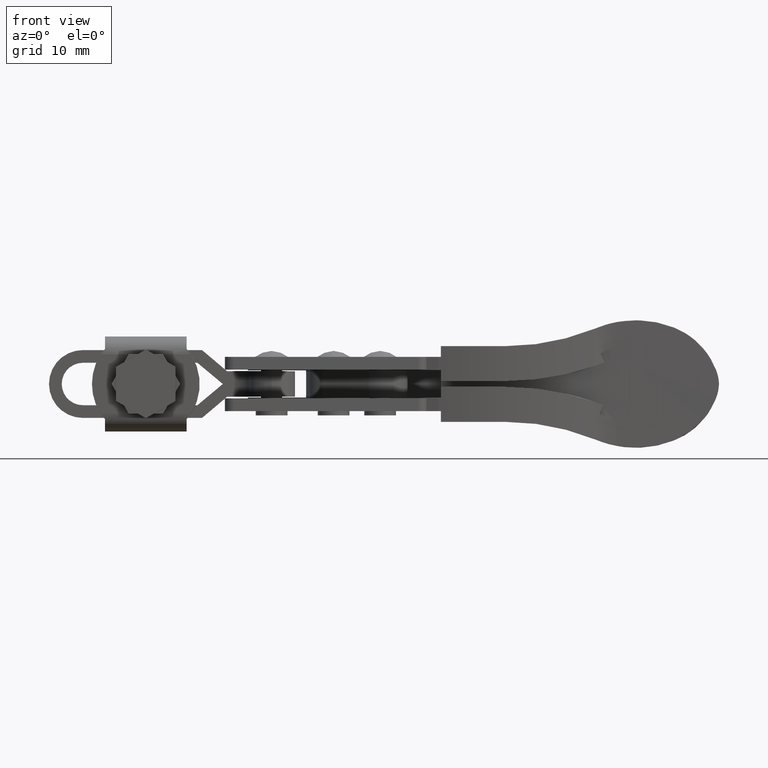
[diagram: clean part render]
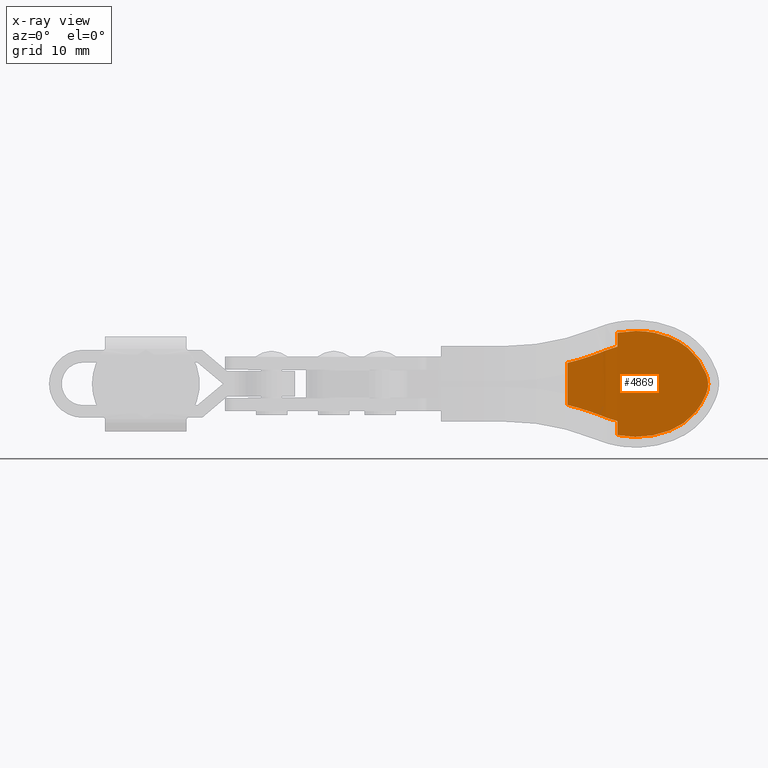
[diagram: x-ray — body ghosted, one internal face saturated and labeled with its STEP entity id]
A machine part, front view, then the same camera in x-ray: the body is ghosted and one INTERNAL B-rep face — a face not visible from any outside direction — is saturated and labeled: STEP entity #4869.
In plain terms, the highlighted planar face has unit normal (-0.0016, -1, -0).
Its self-contained STEP definition (entity closure, byte-faithful):
#28 = CARTESIAN_POINT ( 'NONE',  ( 45.79098327972375400, 17.88650905274218400, 4.241310873853462800 ) ) ;
#110 = EDGE_CURVE ( 'NONE', #5637, #6871, #838, .T. ) ;
#150 = VECTOR ( 'NONE', #814, 1000.000000000000000 ) ;
#318 = CARTESIAN_POINT ( 'NONE',  ( 48.44543944868318200, 17.88235158816831200, 6.249999999999964500 ) ) ;
#377 = CARTESIAN_POINT ( 'NONE',  ( 52.48429700440505700, 17.87596554056541700, 5.481695308335674500 ) ) ;
#436 = VERTEX_POINT ( 'NONE', #6286 ) ;
#437 = CARTESIAN_POINT ( 'NONE',  ( 46.98360184988707300, 17.88462984043733100, 6.102820257366212300 ) ) ;
#491 = CARTESIAN_POINT ( 'NONE',  ( 48.44543944868318200, 17.88235158816831200, 6.249999999999964500 ) ) ;
#504 = CARTESIAN_POINT ( 'NONE',  ( 46.25268310638163200, 17.88580355685209600, 6.029230386049039000 ) ) ;
#619 = VERTEX_POINT ( 'NONE', #6979 ) ;
#726 = VERTEX_POINT ( 'NONE', #2441 ) ;
#775 = CARTESIAN_POINT ( 'NONE',  ( 44.86750784398439900, 17.83976922257006600, 3.942466847917069500 ) ) ;
#814 = DIRECTION ( 'NONE',  ( -2.041693517150469500E-019, 9.875386707149103800E-023, 1.000000000000000000 ) ) ;
#820 = CARTESIAN_POINT ( 'NONE',  ( 46.25268317455845600, 17.88584408937888500, -6.029230386594629300 ) ) ;
#838 = B_SPLINE_CURVE_WITH_KNOTS ( 'NONE', 3,
 ( #318, #1660, #437, #504 ),
 .UNSPECIFIED., .F., .F.,
 ( 4, 4 ),
 ( 0.0000000000000000000, 1.000000000000000000 ),
 .UNSPECIFIED. ) ;
#857 = DIRECTION ( 'NONE',  ( -0.001575700747062900700, -0.9999987585828072900, -2.229560555275515400E-022 ) ) ;
#1080 = CARTESIAN_POINT ( 'NONE',  ( 56.87431524658510500, 17.86904501660190500, 0.8275352792890107200 ) ) ;
#1178 = B_SPLINE_CURVE_WITH_KNOTS ( 'NONE', 3,
 ( #2174, #1419, #8324, #3740 ),
 .UNSPECIFIED., .F., .F.,
 ( 4, 4 ),
 ( 0.0000000000000000000, 1.000000000000000000 ),
 .UNSPECIFIED. ) ;
#1228 = CIRCLE ( 'NONE', #5844, 31.08454709074505500 ) ;
#1255 = CARTESIAN_POINT ( 'NONE',  ( 56.87431520584860300, 17.86904501666608900, -0.8275354673649292200 ) ) ;
#1417 = FACE_OUTER_BOUND ( 'NONE', #7432, .T. ) ;
#1419 = CARTESIAN_POINT ( 'NONE',  ( 45.32928351146991000, 17.88723655431507000, -4.091888911261723800 ) ) ;
#1592 = CARTESIAN_POINT ( 'NONE',  ( 46.25268307082375700, 17.88578155113326700, 4.651286101840660200 ) ) ;
#1608 = EDGE_CURVE ( 'NONE', #5301, #4837, #8622, .T. ) ;
#1660 = CARTESIAN_POINT ( 'NONE',  ( 47.71452062895041700, 17.88347812974136300, 6.176410128683188300 ) ) ;
#1699 = AXIS2_PLACEMENT_3D ( 'NONE', #4699, #857, #8543 ) ;
#1787 = CARTESIAN_POINT ( 'NONE',  ( 44.86750784398448400, 17.83976922257007300, -3.942466847917188900 ) ) ;
#1804 = CARTESIAN_POINT ( 'NONE',  ( 55.95513906113730200, 17.87049336500200200, -3.196986526623715200 ) ) ;
#1872 = EDGE_CURVE ( 'NONE', #3166, #5810, #8536, .T. ) ;
#1909 = CARTESIAN_POINT ( 'NONE',  ( 33.02944407427631300, 17.90661744456475200, 32.68454709073220200 ) ) ;
#1915 = CARTESIAN_POINT ( 'NONE',  ( 40.37391496331066800, 17.89504474193171600, 4.886345488035412500E-014 ) ) ;
#2062 = CARTESIAN_POINT ( 'NONE',  ( 44.86750784398448400, 17.83976922257007300, -3.942466847917188900 ) ) ;
#2144 = CARTESIAN_POINT ( 'NONE',  ( 46.25268317455845600, 17.88584408937888500, -6.029230386594629300 ) ) ;
#2174 = CARTESIAN_POINT ( 'NONE',  ( 44.86750784398448400, 17.83976922257007300, -3.942466847917188900 ) ) ;
#2183 = B_SPLINE_CURVE_WITH_KNOTS ( 'NONE', 3,
 ( #4612, #28, #5387, #775 ),
 .UNSPECIFIED., .F., .F.,
 ( 4, 4 ),
 ( 0.0000000000000000000, 1.000000000000000000 ),
 .UNSPECIFIED. ) ;
#2260 = CARTESIAN_POINT ( 'NONE',  ( 46.25268307082375700, 17.88578155113326700, -4.651286176659945100 ) ) ;
#2279 = CARTESIAN_POINT ( 'NONE',  ( 56.72282315603347800, 17.86928372309849100, -1.218051450812564800 ) ) ;
#2301 = ORIENTED_EDGE ( 'NONE', *, *, #3812, .T. ) ;
#2377 = CARTESIAN_POINT ( 'NONE',  ( 52.48429699929834400, 17.87596238022110700, -5.481695308335604400 ) ) ;
#2420 = CARTESIAN_POINT ( 'NONE',  ( 44.86750784398439900, 17.83976922257006600, 3.942466847917069500 ) ) ;
#2441 = CARTESIAN_POINT ( 'NONE',  ( 40.37391346090478100, 17.89504474427887000, -2.480109319563617900 ) ) ;
#2502 = CARTESIAN_POINT ( 'NONE',  ( 52.48429699929834400, 17.87596238022110700, -5.481695308335604400 ) ) ;
#2535 = ORIENTED_EDGE ( 'NONE', *, *, #1872, .T. ) ;
#2584 = CARTESIAN_POINT ( 'NONE',  ( 52.48429699929834400, 17.87596238022110700, -5.481695308335604400 ) ) ;
#2635 =( BOUNDED_CURVE ( )  B_SPLINE_CURVE ( 3, ( #6612, #1255, #7406, #2798 ),
 .UNSPECIFIED., .F., .F. ) 
 B_SPLINE_CURVE_WITH_KNOTS ( ( 4, 4 ),
 ( 5.913128607421209700, 6.225998711241637700 ),
 .UNSPECIFIED. ) 
 CURVE ( )  GEOMETRIC_REPRESENTATION_ITEM ( )  RATIONAL_B_SPLINE_CURVE ( ( 1.000000000000000000, 0.9918593133676305600, 0.9918593133676305600, 1.000000000000000000 ) ) 
 REPRESENTATION_ITEM ( '' )  );
#2676 = DIRECTION ( 'NONE',  ( -0.9999987585828072900, 0.001575700747057735500, 0.0000000000000000000 ) ) ;
#2753 = ORIENTED_EDGE ( 'NONE', *, *, #3458, .T. ) ;
#2798 = CARTESIAN_POINT ( 'NONE',  ( 56.98705663460304300, 17.86886736969204400, -8.494730215188313900E-014 ) ) ;
#2829 = ORIENTED_EDGE ( 'NONE', *, *, #8651, .F. ) ;
#2877 = CARTESIAN_POINT ( 'NONE',  ( 51.18659504783050800, 17.87800717269393800, 5.993195533643512500 ) ) ;
#2928 = LINE ( 'NONE', #1915, #8809 ) ;
#2945 = VERTEX_POINT ( 'NONE', #7091 ) ;
#3030 = CARTESIAN_POINT ( 'NONE',  ( 56.98705663460304300, 17.86886736969204400, -8.494730215188313900E-014 ) ) ;
#3054 = ORIENTED_EDGE ( 'NONE', *, *, #1608, .T. ) ;
#3056 = CARTESIAN_POINT ( 'NONE',  ( 56.96311593644716000, 17.86890509311484000, 0.4181858341423515000 ) ) ;
#3166 = VERTEX_POINT ( 'NONE', #2502 ) ;
#3237 = CARTESIAN_POINT ( 'NONE',  ( 44.50011640285117700, 17.88854307516950100, 3.795205002887558800 ) ) ;
#3364 = CARTESIAN_POINT ( 'NONE',  ( 56.72282315603347800, 17.86928372309849100, -1.218051450812564800 ) ) ;
#3404 = LINE ( 'NONE', #2260, #7000 ) ;
#3451 = ORIENTED_EDGE ( 'NONE', *, *, #7357, .T. ) ;
#3458 = EDGE_CURVE ( 'NONE', #5238, #436, #1178, .T. ) ;
#3565 = VERTEX_POINT ( 'NONE', #4641 ) ;
#3740 = CARTESIAN_POINT ( 'NONE',  ( 46.25268306320832300, 17.88578155114527800, -4.390732838272668000 ) ) ;
#3812 = EDGE_CURVE ( 'NONE', #4837, #7127, #9288, .T. ) ;
#3844 = DIRECTION ( 'NONE',  ( -0.001575700747058199600, -0.9999987585828072900, -5.029833024917146000E-022 ) ) ;
#3912 = CIRCLE ( 'NONE', #7001, 31.08459272739558400 ) ;
#4198 = CARTESIAN_POINT ( 'NONE',  ( 56.72282325979133300, 17.86928372293499800, 1.218051183345772100 ) ) ;
#4268 = CARTESIAN_POINT ( 'NONE',  ( 56.72282325979133300, 17.86928372293499800, 1.218051183345772100 ) ) ;
#4519 = B_SPLINE_CURVE_WITH_KNOTS ( 'NONE', 3,
 ( #8241, #2877, #9803, #5200 ),
 .UNSPECIFIED., .F., .F.,
 ( 4, 4 ),
 ( 0.0000000000000000000, 1.000000000000000000 ),
 .UNSPECIFIED. ) ;
#4612 = CARTESIAN_POINT ( 'NONE',  ( 46.25268306320830200, 17.88578155114527800, 4.390732840097321300 ) ) ;
#4641 = CARTESIAN_POINT ( 'NONE',  ( 40.37432946924720800, 17.89504408879348700, 2.478404440749573100 ) ) ;
#4699 = CARTESIAN_POINT ( 'NONE',  ( 32.88581592023680100, 17.90684375983535400, -6.429256613801655400 ) ) ;
#4837 = VERTEX_POINT ( 'NONE', #7705 ) ;
#4844 = EDGE_CURVE ( 'NONE', #6295, #3166, #8020, .T. ) ;
#4863 = ORIENTED_EDGE ( 'NONE', *, *, #8688, .F. ) ;
#4869 = ADVANCED_FACE ( 'NONE', ( #1417 ), #7020, .T. ) ;
#4870 = B_SPLINE_CURVE_WITH_KNOTS ( 'NONE', 3,
 ( #2420, #5525, #3237, #8610 ),
 .UNSPECIFIED., .F., .F.,
 ( 4, 4 ),
 ( 0.0000000000000000000, 1.000000000000000000 ),
 .UNSPECIFIED. ) ;
#4982 = CARTESIAN_POINT ( 'NONE',  ( 54.45866028947305900, 17.87285137064774400, 4.702333559546856300 ) ) ;
#5200 = CARTESIAN_POINT ( 'NONE',  ( 48.44543944868318200, 17.88235158816831200, 6.249999999999964500 ) ) ;
#5208 = CARTESIAN_POINT ( 'NONE',  ( 46.25268310638163200, 17.88580355685209600, 6.029230386049039000 ) ) ;
#5238 = VERTEX_POINT ( 'NONE', #2062 ) ;
#5301 = VERTEX_POINT ( 'NONE', #9129 ) ;
#5387 = CARTESIAN_POINT ( 'NONE',  ( 45.32928351147008800, 17.88723655431507000, 4.091888911260817900 ) ) ;
#5413 = ORIENTED_EDGE ( 'NONE', *, *, #9174, .T. ) ;
#5525 = CARTESIAN_POINT ( 'NONE',  ( 44.68385010415659100, 17.88825356547968700, 3.868835900214546700 ) ) ;
#5637 = VERTEX_POINT ( 'NONE', #491 ) ;
#5810 = VERTEX_POINT ( 'NONE', #2279 ) ;
#5844 = AXIS2_PLACEMENT_3D ( 'NONE', #1909, #7281, #2676 ) ;
#5937 = ORIENTED_EDGE ( 'NONE', *, *, #7513, .F. ) ;
#6102 = VERTEX_POINT ( 'NONE', #9520 ) ;
#6121 = ORIENTED_EDGE ( 'NONE', *, *, #8285, .T. ) ;
#6286 = CARTESIAN_POINT ( 'NONE',  ( 46.25268306320832300, 17.88578155114527800, -4.390732838272668000 ) ) ;
#6295 = VERTEX_POINT ( 'NONE', #2144 ) ;
#6310 = VERTEX_POINT ( 'NONE', #9847 ) ;
#6350 = CARTESIAN_POINT ( 'NONE',  ( 44.19539548682648400, 17.88902322474060500, -3.674715870943699300 ) ) ;
#6379 = CARTESIAN_POINT ( 'NONE',  ( 44.64352106254607800, 17.88831711205957100, -3.853216414295353300 ) ) ;
#6441 = CARTESIAN_POINT ( 'NONE',  ( 52.48429700440505700, 17.87596554056541700, 5.481695308335674500 ) ) ;
#6612 = CARTESIAN_POINT ( 'NONE',  ( 56.72282315603347800, 17.86928372309849100, -1.218051450812564800 ) ) ;
#6810 = ORIENTED_EDGE ( 'NONE', *, *, #8396, .F. ) ;
#6870 = DIRECTION ( 'NONE',  ( -2.041693517150469300E-019, 9.875386707149082600E-023, 1.000000000000000000 ) ) ;
#6871 = VERTEX_POINT ( 'NONE', #5208 ) ;
#6904 = ORIENTED_EDGE ( 'NONE', *, *, #8781, .T. ) ;
#6979 = CARTESIAN_POINT ( 'NONE',  ( 46.25268306320830200, 17.88578155114527800, 4.390732840097321300 ) ) ;
#6980 = CARTESIAN_POINT ( 'NONE',  ( 50.48984755597374600, 17.87910503960028000, -6.268985881293514400 ) ) ;
#7000 = VECTOR ( 'NONE', #6870, 1000.000000000000000 ) ;
#7001 = AXIS2_PLACEMENT_3D ( 'NONE', #8427, #3844, #9219 ) ;
#7020 = PLANE ( 'NONE',  #1699 ) ;
#7091 = CARTESIAN_POINT ( 'NONE',  ( 44.31638257475818700, 17.88883258505909200, 3.721574430905593400 ) ) ;
#7117 = CARTESIAN_POINT ( 'NONE',  ( 44.41945831962991100, 17.88867016832926300, -3.763966031049533100 ) ) ;
#7127 = VERTEX_POINT ( 'NONE', #6441 ) ;
#7180 = CARTESIAN_POINT ( 'NONE',  ( 54.45866019241150700, 17.87285137080068500, -4.702333597896849700 ) ) ;
#7281 = DIRECTION ( 'NONE',  ( 0.001575700747057765400, 0.9999987585828072900, 2.229560555265031400E-022 ) ) ;
#7291 = DIRECTION ( 'NONE',  ( -2.041693517150469300E-019, 9.875386707149082600E-023, 1.000000000000000000 ) ) ;
#7357 = EDGE_CURVE ( 'NONE', #7127, #5637, #4519, .T. ) ;
#7406 = CARTESIAN_POINT ( 'NONE',  ( 56.96311593091393600, 17.86890509312355500, -0.4181859307937691500 ) ) ;
#7432 = EDGE_LOOP ( 'NONE', ( #3451, #9914, #4863, #9438, #5413, #6904, #6810, #5937, #6121, #2753, #2829, #8186, #2535, #8129, #3054, #2301 ) ) ;
#7513 = EDGE_CURVE ( 'NONE', #6102, #726, #3912, .T. ) ;
#7705 = CARTESIAN_POINT ( 'NONE',  ( 56.72282325979133300, 17.86928372293499800, 1.218051183345772100 ) ) ;
#8020 =( BOUNDED_CURVE ( )  B_SPLINE_CURVE ( 3, ( #820, #8488, #6980, #2377 ),
 .UNSPECIFIED., .F., .F. ) 
 B_SPLINE_CURVE_WITH_KNOTS ( ( 4, 4 ),
 ( 4.511702855504870200, 5.088352936674278100 ),
 .UNSPECIFIED. ) 
 CURVE ( )  GEOMETRIC_REPRESENTATION_ITEM ( )  RATIONAL_B_SPLINE_CURVE ( ( 1.000000000000000000, 0.9724809929929847400, 0.9724809929929847400, 1.000000000000000000 ) ) 
 REPRESENTATION_ITEM ( '' )  );
#8023 = CARTESIAN_POINT ( 'NONE',  ( 55.95513920289041500, 17.87049336477863900, 3.196986385710639300 ) ) ;
#8067 = LINE ( 'NONE', #1592, #150 ) ;
#8129 = ORIENTED_EDGE ( 'NONE', *, *, #9401, .T. ) ;
#8186 = ORIENTED_EDGE ( 'NONE', *, *, #4844, .T. ) ;
#8241 = CARTESIAN_POINT ( 'NONE',  ( 52.48429700440505700, 17.87596554056541700, 5.481695308335674500 ) ) ;
#8285 = EDGE_CURVE ( 'NONE', #6102, #5238, #9605, .T. ) ;
#8324 = CARTESIAN_POINT ( 'NONE',  ( 45.79098327972367600, 17.88650905274218400, -4.241310873854370600 ) ) ;
#8396 = EDGE_CURVE ( 'NONE', #726, #3565, #2928, .T. ) ;
#8427 = CARTESIAN_POINT ( 'NONE',  ( 33.02943604681566800, 17.90661745721367000, -32.68459272737743500 ) ) ;
#8488 = CARTESIAN_POINT ( 'NONE',  ( 48.35386273355151600, 17.88247071665889700, -6.456662241275364700 ) ) ;
#8536 =( BOUNDED_CURVE ( )  B_SPLINE_CURVE ( 3, ( #2584, #7180, #1804, #3364 ),
 .UNSPECIFIED., .F., .F. ) 
 B_SPLINE_CURVE_WITH_KNOTS ( ( 4, 4 ),
 ( 5.088352936674282600, 5.913128631929250600 ),
 .UNSPECIFIED. ) 
 CURVE ( )  GEOMETRIC_REPRESENTATION_ITEM ( )  RATIONAL_B_SPLINE_CURVE ( ( 1.000000000000000000, 0.9441109271713449300, 0.9441109271713449300, 1.000000000000000000 ) ) 
 REPRESENTATION_ITEM ( '' )  );
#8543 = DIRECTION ( 'NONE',  ( 0.9999987585828072900, -0.001575700747062900700, 2.041692538622487400E-019 ) ) ;
#8610 = CARTESIAN_POINT ( 'NONE',  ( 44.31638257475818700, 17.88883258505909200, 3.721574430905593400 ) ) ;
#8622 =( BOUNDED_CURVE ( )  B_SPLINE_CURVE ( 3, ( #3030, #3056, #1080, #4268 ),
 .UNSPECIFIED., .F., .F. ) 
 B_SPLINE_CURVE_WITH_KNOTS ( ( 4, 4 ),
 ( 0.05718659593788200100, 0.3700566280365806800 ),
 .UNSPECIFIED. ) 
 CURVE ( )  GEOMETRIC_REPRESENTATION_ITEM ( )  RATIONAL_B_SPLINE_CURVE ( ( 1.000000000000000000, 0.9918593170923257800, 0.9918593170923257800, 1.000000000000000000 ) ) 
 REPRESENTATION_ITEM ( '' )  );
#8651 = EDGE_CURVE ( 'NONE', #6295, #436, #3404, .T. ) ;
#8688 = EDGE_CURVE ( 'NONE', #619, #6871, #8067, .T. ) ;
#8781 = EDGE_CURVE ( 'NONE', #2945, #3565, #1228, .T. ) ;
#8809 = VECTOR ( 'NONE', #7291, 1000.000000000000000 ) ;
#9084 = EDGE_CURVE ( 'NONE', #619, #6310, #2183, .T. ) ;
#9129 = CARTESIAN_POINT ( 'NONE',  ( 56.98705663460304300, 17.86886736969204400, -8.494730215188313900E-014 ) ) ;
#9174 = EDGE_CURVE ( 'NONE', #6310, #2945, #4870, .T. ) ;
#9219 = DIRECTION ( 'NONE',  ( -0.9999987585828072900, 0.001575700747058167700, 1.607228267272779500E-014 ) ) ;
#9288 =( BOUNDED_CURVE ( )  B_SPLINE_CURVE ( 3, ( #4198, #8023, #4982, #377 ),
 .UNSPECIFIED., .F., .F. ) 
 B_SPLINE_CURVE_WITH_KNOTS ( ( 4, 4 ),
 ( 0.3700566369987107200, 1.194832370489558000 ),
 .UNSPECIFIED. ) 
 CURVE ( )  GEOMETRIC_REPRESENTATION_ITEM ( )  RATIONAL_B_SPLINE_CURVE ( ( 1.000000000000000000, 0.9441109220630551400, 0.9441109220630551400, 1.000000000000000000 ) ) 
 REPRESENTATION_ITEM ( '' )  );
#9401 = EDGE_CURVE ( 'NONE', #5810, #5301, #2635, .T. ) ;
#9438 = ORIENTED_EDGE ( 'NONE', *, *, #9084, .T. ) ;
#9520 = CARTESIAN_POINT ( 'NONE',  ( 44.19539548682648400, 17.88902322474060500, -3.674715870943699300 ) ) ;
#9605 = B_SPLINE_CURVE_WITH_KNOTS ( 'NONE', 3,
 ( #6350, #7117, #6379, #1787 ),
 .UNSPECIFIED., .F., .F.,
 ( 4, 4 ),
 ( 0.0000000000000000000, 1.000000000000000000 ),
 .UNSPECIFIED. ) ;
#9803 = CARTESIAN_POINT ( 'NONE',  ( 49.84030918406893600, 17.88012851896870000, 6.249297097531632900 ) ) ;
#9847 = CARTESIAN_POINT ( 'NONE',  ( 44.86750784398439900, 17.83976922257006600, 3.942466847917069500 ) ) ;
#9914 = ORIENTED_EDGE ( 'NONE', *, *, #110, .T. ) ;